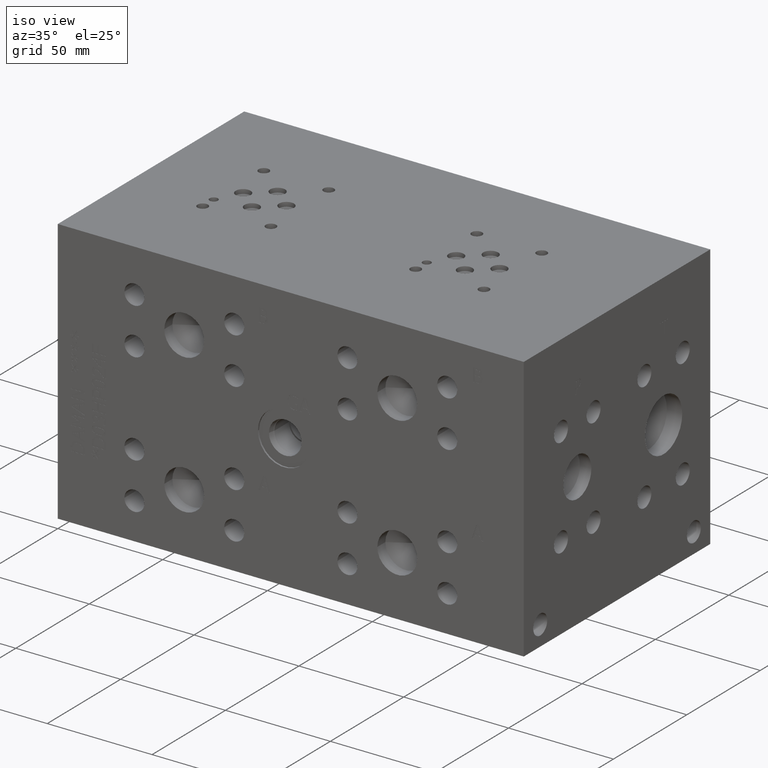
[diagram: clean part render]
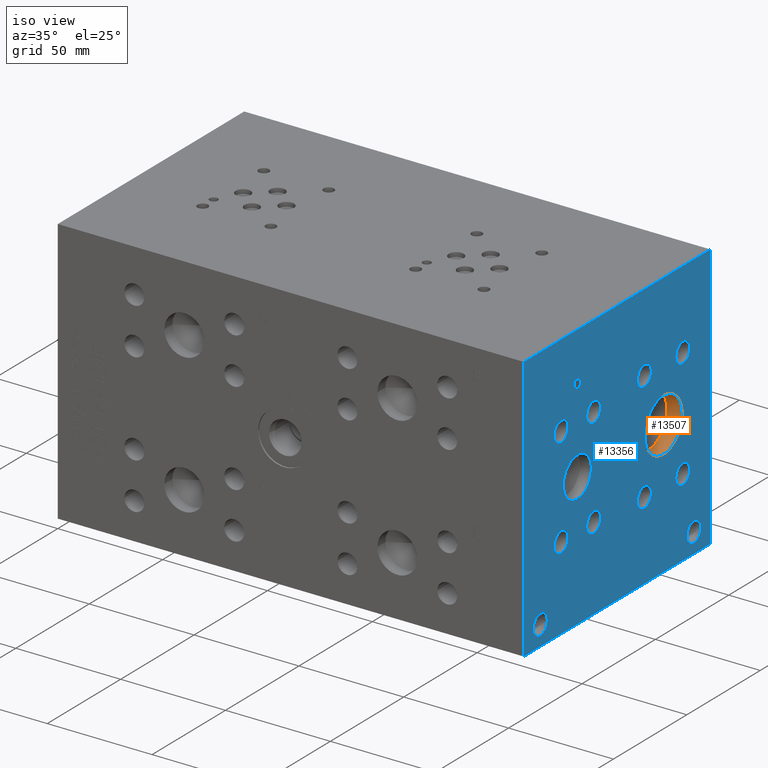
[diagram: same view with the hole feature highlighted: cylindrical wall and planar end face, labeled with their STEP entity ids]
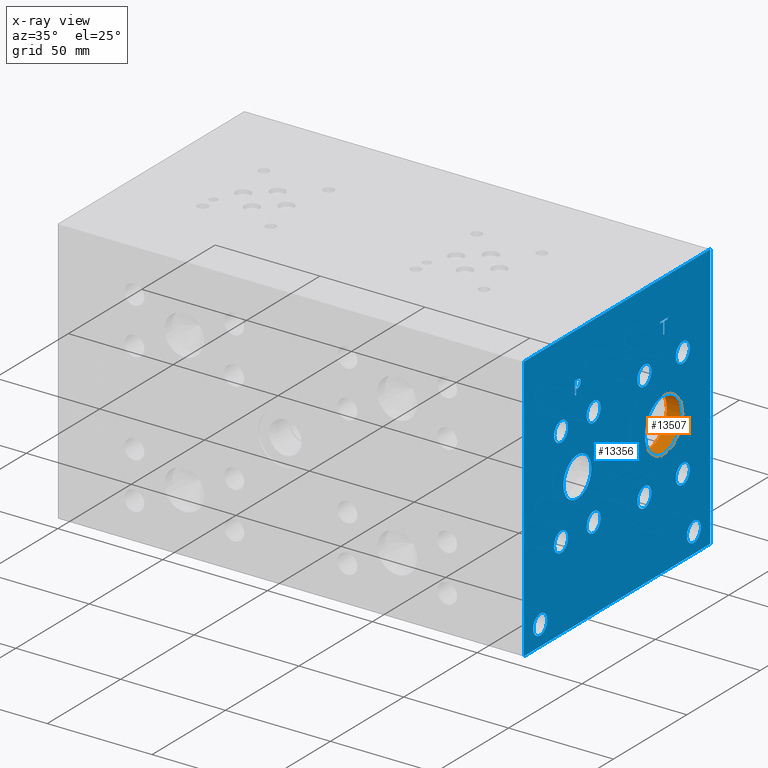
[diagram: x-ray of the same camera — body ghosted, the hole faces saturated]
A machine part, iso view. The highlighted faces form one hole feature of diameter 25.4 mm: the cylindrical wall (entity #13507, orange) and its adjacent planar end face (entity #13356, blue) — they share a circular edge in the B-rep.
The next image is the same camera in x-ray (body ghosted, the hole faces saturated) — the bore reads through the body.
Wall:
#22=CYLINDRICAL_SURFACE('',#14205,12.7);
#251=CIRCLE('',#14053,12.7);
#252=CIRCLE('',#14054,12.7);
#301=CIRCLE('',#14203,12.7);
#302=CIRCLE('',#14204,12.7);
#1649=FACE_OUTER_BOUND('',#2452,.T.);
#2452=EDGE_LOOP('',(#11134,#11135,#11136,#11137,#11138,#11139));
#3774=LINE('',#22555,#4990);
#4990=VECTOR('',#16702,12.7);
#5917=VERTEX_POINT('',#21245);
#5918=VERTEX_POINT('',#21246);
#6144=VERTEX_POINT('',#22548);
#6145=VERTEX_POINT('',#22549);
#7569=EDGE_CURVE('',#5917,#5918,#251,.T.);
#7570=EDGE_CURVE('',#5918,#5917,#252,.T.);
#7923=EDGE_CURVE('',#6144,#6145,#301,.T.);
#7925=EDGE_CURVE('',#6145,#6144,#302,.T.);
#7926=EDGE_CURVE('',#5918,#6145,#3774,.T.);
#11134=ORIENTED_EDGE('',*,*,#7569,.F.);
#11135=ORIENTED_EDGE('',*,*,#7570,.F.);
#11136=ORIENTED_EDGE('',*,*,#7926,.T.);
#11137=ORIENTED_EDGE('',*,*,#7923,.F.);
#11138=ORIENTED_EDGE('',*,*,#7925,.F.);
#11139=ORIENTED_EDGE('',*,*,#7926,.F.);
#13507=ADVANCED_FACE('',(#1649),#22,.F.);
#14053=AXIS2_PLACEMENT_3D('',#21247,#16165,#16166);
#14054=AXIS2_PLACEMENT_3D('',#21248,#16167,#16168);
#14203=AXIS2_PLACEMENT_3D('',#22550,#16695,#16696);
#14204=AXIS2_PLACEMENT_3D('',#22553,#16698,#16699);
#14205=AXIS2_PLACEMENT_3D('',#22554,#16700,#16701);
#16165=DIRECTION('center_axis',(-1.,0.,0.));
#16166=DIRECTION('ref_axis',(0.,1.,0.));
#16167=DIRECTION('center_axis',(-1.,0.,0.));
#16168=DIRECTION('ref_axis',(0.,1.,0.));
#16695=DIRECTION('center_axis',(1.,0.,0.));
#16696=DIRECTION('ref_axis',(0.,1.,0.));
#16698=DIRECTION('center_axis',(1.,0.,0.));
#16699=DIRECTION('ref_axis',(0.,1.,0.));
#16700=DIRECTION('center_axis',(1.,0.,0.));
#16701=DIRECTION('ref_axis',(0.,1.,0.));
#16702=DIRECTION('',(-1.,0.,0.));
#21245=CARTESIAN_POINT('',(222.25,107.95,63.5));
#21246=CARTESIAN_POINT('',(222.25,82.55,63.5));
#21247=CARTESIAN_POINT('Origin',(222.25,95.25,63.5));
#21248=CARTESIAN_POINT('Origin',(222.25,95.25,63.5));
#22548=CARTESIAN_POINT('',(214.91765,107.95,63.5));
#22549=CARTESIAN_POINT('',(214.91765,82.55,63.5));
#22550=CARTESIAN_POINT('Origin',(214.91765,95.25,63.5));
#22553=CARTESIAN_POINT('Origin',(214.91765,95.25,63.5));
#22554=CARTESIAN_POINT('Origin',(218.583825,95.25,63.5));
#22555=CARTESIAN_POINT('',(218.583825,82.55,63.5));
End face:
#233=CIRCLE('',#14035,9.525);
#234=CIRCLE('',#14036,9.525);
#235=CIRCLE('',#14037,4.7625);
#236=CIRCLE('',#14038,4.7625);
#237=CIRCLE('',#14039,4.7625);
#238=CIRCLE('',#14040,4.7625);
#239=CIRCLE('',#14041,4.7625);
#240=CIRCLE('',#14042,4.7625);
#241=CIRCLE('',#14043,4.7625);
#242=CIRCLE('',#14044,4.7625);
#243=CIRCLE('',#14045,4.7625);
#244=CIRCLE('',#14046,4.7625);
#245=CIRCLE('',#14047,4.7625);
#246=CIRCLE('',#14048,4.7625);
#247=CIRCLE('',#14049,4.7625);
#248=CIRCLE('',#14050,4.7625);
#249=CIRCLE('',#14051,4.7625);
#250=CIRCLE('',#14052,4.7625);
#251=CIRCLE('',#14053,12.7);
#252=CIRCLE('',#14054,12.7);
#253=CIRCLE('',#14055,4.7625);
#254=CIRCLE('',#14056,4.7625);
#255=CIRCLE('',#14057,4.7625);
#256=CIRCLE('',#14058,4.7625);
#645=FACE_BOUND('',#2262,.T.);
#646=FACE_BOUND('',#2263,.T.);
#647=FACE_BOUND('',#2264,.T.);
#648=FACE_BOUND('',#2265,.T.);
#649=FACE_BOUND('',#2266,.T.);
#650=FACE_BOUND('',#2267,.T.);
#651=FACE_BOUND('',#2268,.T.);
#652=FACE_BOUND('',#2269,.T.);
#653=FACE_BOUND('',#2270,.T.);
#654=FACE_BOUND('',#2271,.T.);
#655=FACE_BOUND('',#2272,.T.);
#656=FACE_BOUND('',#2273,.T.);
#657=FACE_BOUND('',#2274,.T.);
#658=FACE_BOUND('',#2275,.T.);
#935=B_SPLINE_CURVE_WITH_KNOTS('',2,(#21106,#21107,#21108,#21109),
 .UNSPECIFIED.,.F.,.F.,(3,1,3),(0.,1.,2.),.UNSPECIFIED.);
#937=B_SPLINE_CURVE_WITH_KNOTS('',2,(#21127,#21128,#21129,#21130),
 .UNSPECIFIED.,.F.,.F.,(3,1,3),(0.,1.,2.),.UNSPECIFIED.);
#939=B_SPLINE_CURVE_WITH_KNOTS('',2,(#21176,#21177,#21178,#21179),
 .UNSPECIFIED.,.F.,.F.,(3,1,3),(0.,1.,2.),.UNSPECIFIED.);
#941=B_SPLINE_CURVE_WITH_KNOTS('',2,(#21194,#21195,#21196,#21197),
 .UNSPECIFIED.,.F.,.F.,(3,1,3),(0.,1.,2.),.UNSPECIFIED.);
#1498=FACE_OUTER_BOUND('',#2261,.T.);
#2261=EDGE_LOOP('',(#10345,#10346,#10347,#10348));
#2262=EDGE_LOOP('',(#10349,#10350,#10351,#10352,#10353,#10354,#10355,#10356));
#2263=EDGE_LOOP('',(#10357,#10358));
#2264=EDGE_LOOP('',(#10359,#10360));
#2265=EDGE_LOOP('',(#10361,#10362));
#2266=EDGE_LOOP('',(#10363,#10364));
#2267=EDGE_LOOP('',(#10365,#10366));
#2268=EDGE_LOOP('',(#10367,#10368));
#2269=EDGE_LOOP('',(#10369,#10370));
#2270=EDGE_LOOP('',(#10371,#10372));
#2271=EDGE_LOOP('',(#10373,#10374));
#2272=EDGE_LOOP('',(#10375,#10376));
#2273=EDGE_LOOP('',(#10377,#10378));
#2274=EDGE_LOOP('',(#10379,#10380));
#2275=EDGE_LOOP('',(#10381,#10382,#10383,#10384,#10385,#10386,#10387,#10388,
#10389));
#3041=LINE('',#19702,#4257);
#3460=LINE('',#20907,#4676);
#3464=LINE('',#20915,#4680);
#3467=LINE('',#20921,#4683);
#3470=LINE('',#20927,#4686);
#3473=LINE('',#20933,#4689);
#3476=LINE('',#20939,#4692);
#3479=LINE('',#20945,#4695);
#3482=LINE('',#20950,#4698);
#3524=LINE('',#21139,#4740);
#3527=LINE('',#21145,#4743);
#3530=LINE('',#21151,#4746);
#3533=LINE('',#21157,#4749);
#3536=LINE('',#21163,#4752);
#3540=LINE('',#21205,#4756);
#3541=LINE('',#21207,#4757);
#3542=LINE('',#21208,#4758);
#4257=VECTOR('',#15209,10.);
#4676=VECTOR('',#15992,10.);
#4680=VECTOR('',#15998,10.);
#4683=VECTOR('',#16003,10.);
#4686=VECTOR('',#16008,10.);
#4689=VECTOR('',#16013,10.);
#4692=VECTOR('',#16018,10.);
#4695=VECTOR('',#16023,10.);
#4698=VECTOR('',#16028,10.);
#4740=VECTOR('',#16098,10.);
#4743=VECTOR('',#16103,10.);
#4746=VECTOR('',#16108,10.);
#4749=VECTOR('',#16113,10.);
#4752=VECTOR('',#16118,10.);
#4756=VECTOR('',#16126,10.);
#4757=VECTOR('',#16127,10.);
#4758=VECTOR('',#16128,10.);
#5461=VERTEX_POINT('',#19699);
#5462=VERTEX_POINT('',#19701);
#5833=VERTEX_POINT('',#20905);
#5834=VERTEX_POINT('',#20906);
#5837=VERTEX_POINT('',#20914);
#5839=VERTEX_POINT('',#20920);
#5841=VERTEX_POINT('',#20926);
#5843=VERTEX_POINT('',#20932);
#5845=VERTEX_POINT('',#20938);
#5847=VERTEX_POINT('',#20944);
#5879=VERTEX_POINT('',#21104);
#5880=VERTEX_POINT('',#21105);
#5883=VERTEX_POINT('',#21126);
#5885=VERTEX_POINT('',#21138);
#5887=VERTEX_POINT('',#21144);
#5889=VERTEX_POINT('',#21150);
#5891=VERTEX_POINT('',#21156);
#5893=VERTEX_POINT('',#21162);
#5895=VERTEX_POINT('',#21175);
#5897=VERTEX_POINT('',#21204);
#5898=VERTEX_POINT('',#21206);
#5899=VERTEX_POINT('',#21209);
#5900=VERTEX_POINT('',#21210);
#5901=VERTEX_POINT('',#21213);
#5902=VERTEX_POINT('',#21214);
#5903=VERTEX_POINT('',#21217);
#5904=VERTEX_POINT('',#21218);
#5905=VERTEX_POINT('',#21221);
#5906=VERTEX_POINT('',#21222);
#5907=VERTEX_POINT('',#21225);
#5908=VERTEX_POINT('',#21226);
#5909=VERTEX_POINT('',#21229);
#5910=VERTEX_POINT('',#21230);
#5911=VERTEX_POINT('',#21233);
#5912=VERTEX_POINT('',#21234);
#5913=VERTEX_POINT('',#21237);
#5914=VERTEX_POINT('',#21238);
#5915=VERTEX_POINT('',#21241);
#5916=VERTEX_POINT('',#21242);
#5917=VERTEX_POINT('',#21245);
#5918=VERTEX_POINT('',#21246);
#5919=VERTEX_POINT('',#21249);
#5920=VERTEX_POINT('',#21250);
#5921=VERTEX_POINT('',#21253);
#5922=VERTEX_POINT('',#21254);
#6949=EDGE_CURVE('',#5461,#5462,#3041,.T.);
#7452=EDGE_CURVE('',#5833,#5834,#3460,.T.);
#7456=EDGE_CURVE('',#5837,#5833,#3464,.T.);
#7459=EDGE_CURVE('',#5839,#5837,#3467,.T.);
#7462=EDGE_CURVE('',#5841,#5839,#3470,.T.);
#7465=EDGE_CURVE('',#5843,#5841,#3473,.T.);
#7468=EDGE_CURVE('',#5845,#5843,#3476,.T.);
#7471=EDGE_CURVE('',#5847,#5845,#3479,.T.);
#7474=EDGE_CURVE('',#5834,#5847,#3482,.T.);
#7521=EDGE_CURVE('',#5879,#5880,#935,.T.);
#7525=EDGE_CURVE('',#5883,#5879,#937,.T.);
#7528=EDGE_CURVE('',#5885,#5883,#3524,.T.);
#7531=EDGE_CURVE('',#5887,#5885,#3527,.T.);
#7534=EDGE_CURVE('',#5889,#5887,#3530,.T.);
#7537=EDGE_CURVE('',#5891,#5889,#3533,.T.);
#7540=EDGE_CURVE('',#5893,#5891,#3536,.T.);
#7543=EDGE_CURVE('',#5895,#5893,#939,.T.);
#7546=EDGE_CURVE('',#5880,#5895,#941,.T.);
#7548=EDGE_CURVE('',#5461,#5897,#3540,.T.);
#7549=EDGE_CURVE('',#5897,#5898,#3541,.T.);
#7550=EDGE_CURVE('',#5462,#5898,#3542,.T.);
#7551=EDGE_CURVE('',#5899,#5900,#233,.T.);
#7552=EDGE_CURVE('',#5900,#5899,#234,.T.);
#7553=EDGE_CURVE('',#5901,#5902,#235,.T.);
#7554=EDGE_CURVE('',#5902,#5901,#236,.T.);
#7555=EDGE_CURVE('',#5903,#5904,#237,.T.);
#7556=EDGE_CURVE('',#5904,#5903,#238,.T.);
#7557=EDGE_CURVE('',#5905,#5906,#239,.T.);
#7558=EDGE_CURVE('',#5906,#5905,#240,.T.);
#7559=EDGE_CURVE('',#5907,#5908,#241,.T.);
#7560=EDGE_CURVE('',#5908,#5907,#242,.T.);
#7561=EDGE_CURVE('',#5909,#5910,#243,.T.);
#7562=EDGE_CURVE('',#5910,#5909,#244,.T.);
#7563=EDGE_CURVE('',#5911,#5912,#245,.T.);
#7564=EDGE_CURVE('',#5912,#5911,#246,.T.);
#7565=EDGE_CURVE('',#5913,#5914,#247,.T.);
#7566=EDGE_CURVE('',#5914,#5913,#248,.T.);
#7567=EDGE_CURVE('',#5915,#5916,#249,.T.);
#7568=EDGE_CURVE('',#5916,#5915,#250,.T.);
#7569=EDGE_CURVE('',#5917,#5918,#251,.T.);
#7570=EDGE_CURVE('',#5918,#5917,#252,.T.);
#7571=EDGE_CURVE('',#5919,#5920,#253,.T.);
#7572=EDGE_CURVE('',#5920,#5919,#254,.T.);
#7573=EDGE_CURVE('',#5921,#5922,#255,.T.);
#7574=EDGE_CURVE('',#5922,#5921,#256,.T.);
#10345=ORIENTED_EDGE('',*,*,#7548,.T.);
#10346=ORIENTED_EDGE('',*,*,#7549,.T.);
#10347=ORIENTED_EDGE('',*,*,#7550,.F.);
#10348=ORIENTED_EDGE('',*,*,#6949,.F.);
#10349=ORIENTED_EDGE('',*,*,#7452,.T.);
#10350=ORIENTED_EDGE('',*,*,#7474,.T.);
#10351=ORIENTED_EDGE('',*,*,#7471,.T.);
#10352=ORIENTED_EDGE('',*,*,#7468,.T.);
#10353=ORIENTED_EDGE('',*,*,#7465,.T.);
#10354=ORIENTED_EDGE('',*,*,#7462,.T.);
#10355=ORIENTED_EDGE('',*,*,#7459,.T.);
#10356=ORIENTED_EDGE('',*,*,#7456,.T.);
#10357=ORIENTED_EDGE('',*,*,#7551,.T.);
#10358=ORIENTED_EDGE('',*,*,#7552,.T.);
#10359=ORIENTED_EDGE('',*,*,#7553,.T.);
#10360=ORIENTED_EDGE('',*,*,#7554,.T.);
#10361=ORIENTED_EDGE('',*,*,#7555,.T.);
#10362=ORIENTED_EDGE('',*,*,#7556,.T.);
#10363=ORIENTED_EDGE('',*,*,#7557,.T.);
#10364=ORIENTED_EDGE('',*,*,#7558,.T.);
#10365=ORIENTED_EDGE('',*,*,#7559,.T.);
#10366=ORIENTED_EDGE('',*,*,#7560,.T.);
#10367=ORIENTED_EDGE('',*,*,#7561,.T.);
#10368=ORIENTED_EDGE('',*,*,#7562,.T.);
#10369=ORIENTED_EDGE('',*,*,#7563,.T.);
#10370=ORIENTED_EDGE('',*,*,#7564,.T.);
#10371=ORIENTED_EDGE('',*,*,#7565,.T.);
#10372=ORIENTED_EDGE('',*,*,#7566,.T.);
#10373=ORIENTED_EDGE('',*,*,#7567,.T.);
#10374=ORIENTED_EDGE('',*,*,#7568,.T.);
#10375=ORIENTED_EDGE('',*,*,#7569,.T.);
#10376=ORIENTED_EDGE('',*,*,#7570,.T.);
#10377=ORIENTED_EDGE('',*,*,#7571,.T.);
#10378=ORIENTED_EDGE('',*,*,#7572,.T.);
#10379=ORIENTED_EDGE('',*,*,#7573,.T.);
#10380=ORIENTED_EDGE('',*,*,#7574,.T.);
#10381=ORIENTED_EDGE('',*,*,#7521,.T.);
#10382=ORIENTED_EDGE('',*,*,#7546,.T.);
#10383=ORIENTED_EDGE('',*,*,#7543,.T.);
#10384=ORIENTED_EDGE('',*,*,#7540,.T.);
#10385=ORIENTED_EDGE('',*,*,#7537,.T.);
#10386=ORIENTED_EDGE('',*,*,#7534,.T.);
#10387=ORIENTED_EDGE('',*,*,#7531,.T.);
#10388=ORIENTED_EDGE('',*,*,#7528,.T.);
#10389=ORIENTED_EDGE('',*,*,#7525,.T.);
#12412=PLANE('',#14034);
#13356=ADVANCED_FACE('',(#1498,#645,#646,#647,#648,#649,#650,#651,#652,
#653,#654,#655,#656,#657,#658),#12412,.T.);
#14034=AXIS2_PLACEMENT_3D('',#21203,#16124,#16125);
#14035=AXIS2_PLACEMENT_3D('',#21211,#16129,#16130);
#14036=AXIS2_PLACEMENT_3D('',#21212,#16131,#16132);
#14037=AXIS2_PLACEMENT_3D('',#21215,#16133,#16134);
#14038=AXIS2_PLACEMENT_3D('',#21216,#16135,#16136);
#14039=AXIS2_PLACEMENT_3D('',#21219,#16137,#16138);
#14040=AXIS2_PLACEMENT_3D('',#21220,#16139,#16140);
#14041=AXIS2_PLACEMENT_3D('',#21223,#16141,#16142);
#14042=AXIS2_PLACEMENT_3D('',#21224,#16143,#16144);
#14043=AXIS2_PLACEMENT_3D('',#21227,#16145,#16146);
#14044=AXIS2_PLACEMENT_3D('',#21228,#16147,#16148);
#14045=AXIS2_PLACEMENT_3D('',#21231,#16149,#16150);
#14046=AXIS2_PLACEMENT_3D('',#21232,#16151,#16152);
#14047=AXIS2_PLACEMENT_3D('',#21235,#16153,#16154);
#14048=AXIS2_PLACEMENT_3D('',#21236,#16155,#16156);
#14049=AXIS2_PLACEMENT_3D('',#21239,#16157,#16158);
#14050=AXIS2_PLACEMENT_3D('',#21240,#16159,#16160);
#14051=AXIS2_PLACEMENT_3D('',#21243,#16161,#16162);
#14052=AXIS2_PLACEMENT_3D('',#21244,#16163,#16164);
#14053=AXIS2_PLACEMENT_3D('',#21247,#16165,#16166);
#14054=AXIS2_PLACEMENT_3D('',#21248,#16167,#16168);
#14055=AXIS2_PLACEMENT_3D('',#21251,#16169,#16170);
#14056=AXIS2_PLACEMENT_3D('',#21252,#16171,#16172);
#14057=AXIS2_PLACEMENT_3D('',#21255,#16173,#16174);
#14058=AXIS2_PLACEMENT_3D('',#21256,#16175,#16176);
#15209=DIRECTION('',(0.,0.,1.));
#15992=DIRECTION('',(0.,-1.,0.));
#15998=DIRECTION('',(0.,0.,-1.));
#16003=DIRECTION('',(0.,-1.,0.));
#16008=DIRECTION('',(0.,0.,-1.));
#16013=DIRECTION('',(0.,1.,0.));
#16018=DIRECTION('',(0.,0.,1.));
#16023=DIRECTION('',(0.,-1.,0.));
#16028=DIRECTION('',(0.,0.,1.));
#16098=DIRECTION('',(0.,1.,0.));
#16103=DIRECTION('',(0.,0.,1.));
#16108=DIRECTION('',(0.,-1.,0.));
#16113=DIRECTION('',(0.,0.,-1.));
#16118=DIRECTION('',(0.,-1.,0.));
#16124=DIRECTION('center_axis',(1.,0.,0.));
#16125=DIRECTION('ref_axis',(0.,1.,0.));
#16126=DIRECTION('',(0.,1.,0.));
#16127=DIRECTION('',(0.,0.,1.));
#16128=DIRECTION('',(0.,1.,0.));
#16129=DIRECTION('center_axis',(-1.,0.,0.));
#16130=DIRECTION('ref_axis',(0.,1.,0.));
#16131=DIRECTION('center_axis',(-1.,0.,0.));
#16132=DIRECTION('ref_axis',(0.,1.,0.));
#16133=DIRECTION('center_axis',(-1.,0.,0.));
#16134=DIRECTION('ref_axis',(0.,1.,0.));
#16135=DIRECTION('center_axis',(-1.,0.,0.));
#16136=DIRECTION('ref_axis',(0.,1.,0.));
#16137=DIRECTION('center_axis',(-1.,0.,0.));
#16138=DIRECTION('ref_axis',(0.,1.,0.));
#16139=DIRECTION('center_axis',(-1.,0.,0.));
#16140=DIRECTION('ref_axis',(0.,1.,0.));
#16141=DIRECTION('center_axis',(-1.,0.,0.));
#16142=DIRECTION('ref_axis',(0.,1.,0.));
#16143=DIRECTION('center_axis',(-1.,0.,0.));
#16144=DIRECTION('ref_axis',(0.,1.,0.));
#16145=DIRECTION('center_axis',(-1.,0.,0.));
#16146=DIRECTION('ref_axis',(0.,1.,0.));
#16147=DIRECTION('center_axis',(-1.,0.,0.));
#16148=DIRECTION('ref_axis',(0.,1.,0.));
#16149=DIRECTION('center_axis',(-1.,0.,0.));
#16150=DIRECTION('ref_axis',(0.,1.,0.));
#16151=DIRECTION('center_axis',(-1.,0.,0.));
#16152=DIRECTION('ref_axis',(0.,1.,0.));
#16153=DIRECTION('center_axis',(-1.,0.,0.));
#16154=DIRECTION('ref_axis',(0.,1.,0.));
#16155=DIRECTION('center_axis',(-1.,0.,0.));
#16156=DIRECTION('ref_axis',(0.,1.,0.));
#16157=DIRECTION('center_axis',(-1.,0.,0.));
#16158=DIRECTION('ref_axis',(0.,1.,0.));
#16159=DIRECTION('center_axis',(-1.,0.,0.));
#16160=DIRECTION('ref_axis',(0.,1.,0.));
#16161=DIRECTION('center_axis',(-1.,0.,0.));
#16162=DIRECTION('ref_axis',(0.,1.,0.));
#16163=DIRECTION('center_axis',(-1.,0.,0.));
#16164=DIRECTION('ref_axis',(0.,1.,0.));
#16165=DIRECTION('center_axis',(-1.,0.,0.));
#16166=DIRECTION('ref_axis',(0.,1.,0.));
#16167=DIRECTION('center_axis',(-1.,0.,0.));
#16168=DIRECTION('ref_axis',(0.,1.,0.));
#16169=DIRECTION('center_axis',(-1.,0.,0.));
#16170=DIRECTION('ref_axis',(0.,1.,0.));
#16171=DIRECTION('center_axis',(-1.,0.,0.));
#16172=DIRECTION('ref_axis',(0.,1.,0.));
#16173=DIRECTION('center_axis',(-1.,0.,0.));
#16174=DIRECTION('ref_axis',(0.,1.,0.));
#16175=DIRECTION('center_axis',(-1.,0.,0.));
#16176=DIRECTION('ref_axis',(0.,1.,0.));
#19699=CARTESIAN_POINT('',(222.25,0.,0.));
#19701=CARTESIAN_POINT('',(222.25,0.,127.));
#19702=CARTESIAN_POINT('',(222.25,0.,0.));
#20905=CARTESIAN_POINT('',(222.25,95.837915271453,102.39375));
#20906=CARTESIAN_POINT('',(222.25,94.9939930799135,102.39375));
#20907=CARTESIAN_POINT('',(222.25,47.9189576357265,102.39375));
#20914=CARTESIAN_POINT('',(222.25,95.837915271453,107.992453319482));
#20915=CARTESIAN_POINT('',(222.25,95.837915271453,53.9962266597408));
#20920=CARTESIAN_POINT('',(222.25,97.9683042183881,107.992453319482));
#20921=CARTESIAN_POINT('',(222.25,48.984152109194,107.992453319482));
#20926=CARTESIAN_POINT('',(222.25,97.9683042183881,108.743749904633));
#20927=CARTESIAN_POINT('',(222.25,97.9683042183881,54.3718749523163));
#20932=CARTESIAN_POINT('',(222.25,92.8636041329784,108.743749904633));
#20933=CARTESIAN_POINT('',(222.25,46.4318020664892,108.743749904633));
#20938=CARTESIAN_POINT('',(222.25,92.8636041329784,107.992453319482));
#20939=CARTESIAN_POINT('',(222.25,92.8636041329784,53.9962266597408));
#20944=CARTESIAN_POINT('',(222.25,94.9939930799135,107.992453319482));
#20945=CARTESIAN_POINT('',(222.25,47.4969965399568,107.992453319482));
#20950=CARTESIAN_POINT('',(222.25,94.9939930799135,51.196875));
#21104=CARTESIAN_POINT('',(222.25,38.0318172023594,105.172518143971));
#21105=CARTESIAN_POINT('',(222.25,38.788259654532,103.654487372604));
#21106=CARTESIAN_POINT('Ctrl Pts',(222.25,38.0318172023594,105.172518143971));
#21107=CARTESIAN_POINT('Ctrl Pts',(222.25,38.3868820268486,104.930662393956));
#21108=CARTESIAN_POINT('Ctrl Pts',(222.25,38.788259654532,104.184511675827));
#21109=CARTESIAN_POINT('Ctrl Pts',(222.25,38.788259654532,103.654487372604));
#21126=CARTESIAN_POINT('',(222.25,36.3697021543883,105.568749904633));
#21127=CARTESIAN_POINT('Ctrl Pts',(222.25,36.3697021543883,105.568749904633));
#21128=CARTESIAN_POINT('Ctrl Pts',(222.25,36.9357475267624,105.568749904633));
#21129=CARTESIAN_POINT('Ctrl Pts',(222.25,37.728211048086,105.383498691856));
#21130=CARTESIAN_POINT('Ctrl Pts',(222.25,38.0318172023594,105.172518143971));
#21138=CARTESIAN_POINT('',(222.25,34.7744833776978,105.568749904633));
#21139=CARTESIAN_POINT('',(222.25,17.3872416888489,105.568749904633));
#21144=CARTESIAN_POINT('',(222.25,34.7744833776978,99.21875));
#21145=CARTESIAN_POINT('',(222.25,34.7744833776978,49.609375));
#21150=CARTESIAN_POINT('',(222.25,35.6184055692373,99.21875));
#21151=CARTESIAN_POINT('',(222.25,17.8092027846186,99.21875));
#21156=CARTESIAN_POINT('',(222.25,35.6184055692373,101.585848829928));
#21157=CARTESIAN_POINT('',(222.25,35.6184055692373,50.7929244149639));
#21162=CARTESIAN_POINT('',(222.25,36.3336810852372,101.585848829928));
#21163=CARTESIAN_POINT('',(222.25,18.1668405426186,101.585848829928));
#21175=CARTESIAN_POINT('',(222.25,38.2325060162011,102.24451980869));
#21176=CARTESIAN_POINT('Ctrl Pts',(222.25,38.2325060162011,102.24451980869));
#21177=CARTESIAN_POINT('Ctrl Pts',(222.25,37.9031705268198,101.920330186331));
#21178=CARTESIAN_POINT('Ctrl Pts',(222.25,37.0129355320861,101.585848829928));
#21179=CARTESIAN_POINT('Ctrl Pts',(222.25,36.3336810852372,101.585848829928));
#21194=CARTESIAN_POINT('Ctrl Pts',(222.25,38.788259654532,103.654487372604));
#21195=CARTESIAN_POINT('Ctrl Pts',(222.25,38.788259654532,103.242818010877));
#21196=CARTESIAN_POINT('Ctrl Pts',(222.25,38.4949452343018,102.50181315977));
#21197=CARTESIAN_POINT('Ctrl Pts',(222.25,38.2325060162011,102.24451980869));
#21203=CARTESIAN_POINT('Origin',(222.25,0.,0.));
#21204=CARTESIAN_POINT('',(222.25,127.,0.));
#21205=CARTESIAN_POINT('',(222.25,0.,0.));
#21206=CARTESIAN_POINT('',(222.25,127.,127.));
#21207=CARTESIAN_POINT('',(222.25,127.,0.));
#21208=CARTESIAN_POINT('',(222.25,0.,127.));
#21209=CARTESIAN_POINT('',(222.25,46.0502,63.5));
#21210=CARTESIAN_POINT('',(222.25,27.0002,63.5));
#21211=CARTESIAN_POINT('Origin',(222.25,36.5252,63.5));
#21212=CARTESIAN_POINT('Origin',(222.25,36.5252,63.5));
#21213=CARTESIAN_POINT('',(222.25,113.0935,89.6874));
#21214=CARTESIAN_POINT('',(222.25,103.5685,89.6874));
#21215=CARTESIAN_POINT('Origin',(222.25,108.331,89.6874));
#21216=CARTESIAN_POINT('Origin',(222.25,108.331,89.6874));
#21217=CARTESIAN_POINT('',(222.25,86.9315,37.3126));
#21218=CARTESIAN_POINT('',(222.25,77.4065,37.3126));
#21219=CARTESIAN_POINT('Origin',(222.25,82.169,37.3126));
#21220=CARTESIAN_POINT('Origin',(222.25,82.169,37.3126));
#21221=CARTESIAN_POINT('',(222.25,52.3875,39.7002));
#21222=CARTESIAN_POINT('',(222.25,42.8625,39.7002));
#21223=CARTESIAN_POINT('Origin',(222.25,47.625,39.7002));
#21224=CARTESIAN_POINT('Origin',(222.25,47.625,39.7002));
#21225=CARTESIAN_POINT('',(222.25,30.1879,87.2998));
#21226=CARTESIAN_POINT('',(222.25,20.6629,87.2998));
#21227=CARTESIAN_POINT('Origin',(222.25,25.4254,87.2998));
#21228=CARTESIAN_POINT('Origin',(222.25,25.4254,87.2998));
#21229=CARTESIAN_POINT('',(222.25,30.1879,39.7002));
#21230=CARTESIAN_POINT('',(222.25,20.6629,39.7002));
#21231=CARTESIAN_POINT('Origin',(222.25,25.4254,39.7002));
#21232=CARTESIAN_POINT('Origin',(222.25,25.4254,39.7002));
#21233=CARTESIAN_POINT('',(222.25,52.3875,87.2998));
#21234=CARTESIAN_POINT('',(222.25,42.8625,87.2998));
#21235=CARTESIAN_POINT('Origin',(222.25,47.625,87.2998));
#21236=CARTESIAN_POINT('Origin',(222.25,47.625,87.2998));
#21237=CARTESIAN_POINT('',(222.25,113.0935,37.3126));
#21238=CARTESIAN_POINT('',(222.25,103.5685,37.3126));
#21239=CARTESIAN_POINT('Origin',(222.25,108.331,37.3126));
#21240=CARTESIAN_POINT('Origin',(222.25,108.331,37.3126));
#21241=CARTESIAN_POINT('',(222.25,86.9315,89.6874));
#21242=CARTESIAN_POINT('',(222.25,77.4065,89.6874));
#21243=CARTESIAN_POINT('Origin',(222.25,82.169,89.6874));
#21244=CARTESIAN_POINT('Origin',(222.25,82.169,89.6874));
#21245=CARTESIAN_POINT('',(222.25,107.95,63.5));
#21246=CARTESIAN_POINT('',(222.25,82.55,63.5));
#21247=CARTESIAN_POINT('Origin',(222.25,95.25,63.5));
#21248=CARTESIAN_POINT('Origin',(222.25,95.25,63.5));
#21249=CARTESIAN_POINT('',(222.25,15.9893,9.525));
#21250=CARTESIAN_POINT('',(222.25,6.4643,9.525));
#21251=CARTESIAN_POINT('Origin',(222.25,11.2268,9.525));
#21252=CARTESIAN_POINT('Origin',(222.25,11.2268,9.525));
#21253=CARTESIAN_POINT('',(222.25,120.6373,9.525));
#21254=CARTESIAN_POINT('',(222.25,111.1123,9.525));
#21255=CARTESIAN_POINT('Origin',(222.25,115.8748,9.525));
#21256=CARTESIAN_POINT('Origin',(222.25,115.8748,9.525));